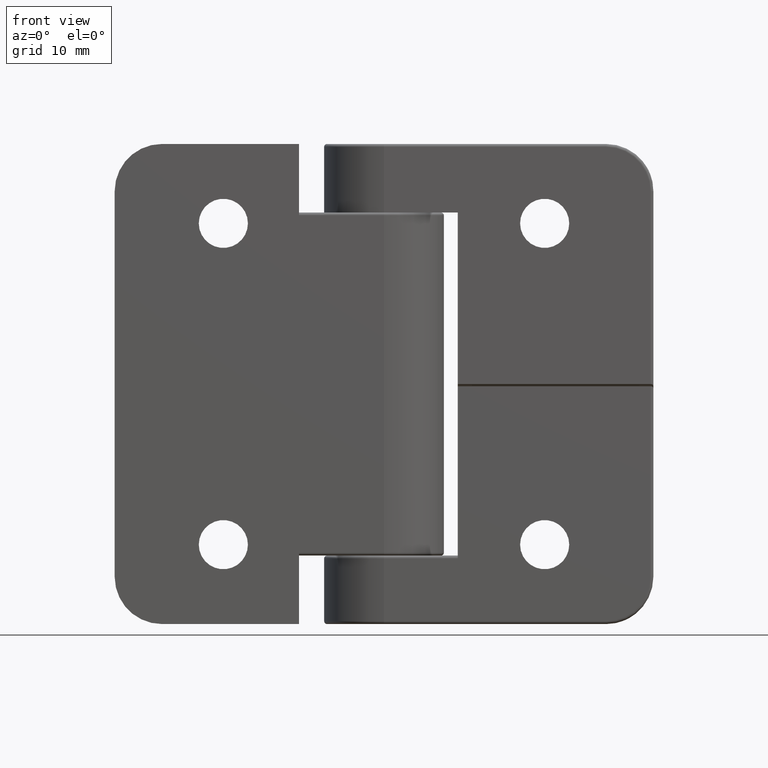
[diagram: clean part render]
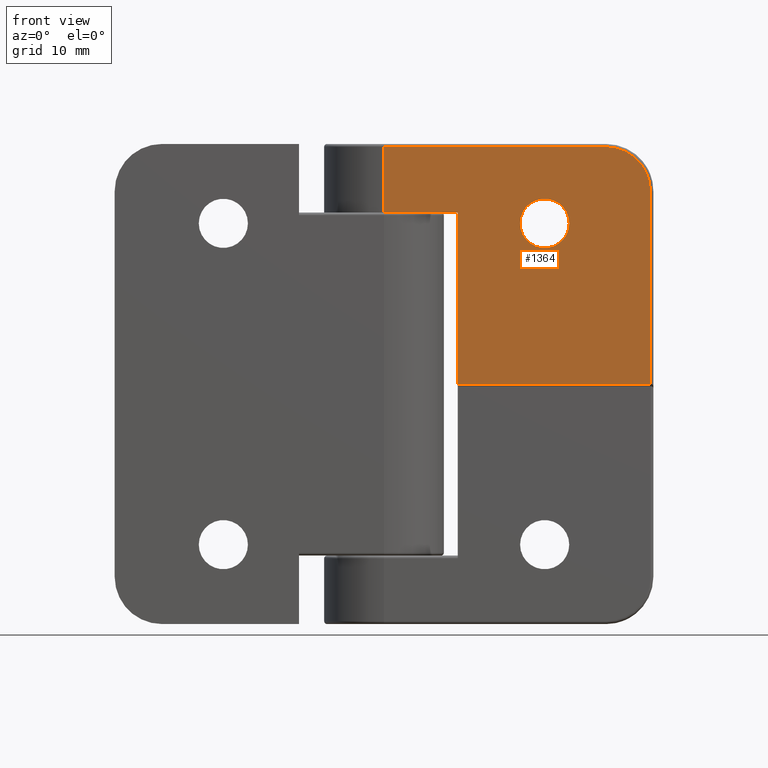
[diagram: same view with one face highlighted and labeled with its STEP entity id]
A machine part, front view. The second image highlights one B-rep face of the part: STEP entity #1364.
In plain terms, the highlighted planar face has unit normal (0, -1, -0).
Its self-contained STEP definition (entity closure, byte-faithful):
#44=FACE_BOUND('',#484,.T.);
#79=PLANE('',#1514);
#150=LINE('',#2334,#245);
#152=LINE('',#2346,#247);
#160=LINE('',#2363,#255);
#167=LINE('',#2400,#262);
#170=LINE('',#2414,#265);
#171=LINE('',#2415,#266);
#245=VECTOR('',#1809,23.5);
#247=VECTOR('',#1823,20.4);
#255=VECTOR('',#1841,20.4);
#262=VECTOR('',#1858,7.8);
#265=VECTOR('',#1877,6.95);
#266=VECTOR('',#1878,18.15);
#390=FACE_OUTER_BOUND('',#483,.T.);
#483=EDGE_LOOP('',(#1175,#1176,#1177,#1178,#1179,#1180,#1181));
#484=EDGE_LOOP('',(#1182));
#566=CIRCLE('',#1494,4.7);
#572=CIRCLE('',#1512,2.6);
#663=VERTEX_POINT('',#2324);
#665=VERTEX_POINT('',#2330);
#667=VERTEX_POINT('',#2336);
#669=VERTEX_POINT('',#2342);
#674=VERTEX_POINT('',#2362);
#680=VERTEX_POINT('',#2397);
#681=VERTEX_POINT('',#2399);
#684=VERTEX_POINT('',#2409);
#826=EDGE_CURVE('',#663,#665,#150,.T.);
#829=EDGE_CURVE('',#665,#667,#566,.T.);
#832=EDGE_CURVE('',#667,#669,#152,.T.);
#840=EDGE_CURVE('',#674,#669,#160,.T.);
#850=EDGE_CURVE('',#681,#680,#167,.T.);
#855=EDGE_CURVE('',#684,#684,#572,.T.);
#857=EDGE_CURVE('',#663,#681,#170,.T.);
#858=EDGE_CURVE('',#680,#674,#171,.T.);
#1175=ORIENTED_EDGE('',*,*,#826,.F.);
#1176=ORIENTED_EDGE('',*,*,#857,.T.);
#1177=ORIENTED_EDGE('',*,*,#850,.T.);
#1178=ORIENTED_EDGE('',*,*,#858,.T.);
#1179=ORIENTED_EDGE('',*,*,#840,.T.);
#1180=ORIENTED_EDGE('',*,*,#832,.F.);
#1181=ORIENTED_EDGE('',*,*,#829,.F.);
#1182=ORIENTED_EDGE('',*,*,#855,.T.);
#1364=ADVANCED_FACE('',(#390,#44),#79,.T.);
#1494=AXIS2_PLACEMENT_3D('',#2340,#1816,#1817);
#1512=AXIS2_PLACEMENT_3D('',#2410,#1870,#1871);
#1514=AXIS2_PLACEMENT_3D('',#2413,#1875,#1876);
#1809=DIRECTION('',(-1.,-4.67462326157961E-16,0.));
#1816=DIRECTION('center_axis',(-4.67462326157961E-16,1.,0.));
#1817=DIRECTION('ref_axis',(-0.707106781186548,-3.30545780775532E-16,-0.707106781186548));
#1823=DIRECTION('',(0.,0.,1.));
#1841=DIRECTION('',(-1.,-4.67462326157961E-16,-3.03850512002674E-16));
#1858=DIRECTION('',(-1.,-4.67462326157961E-16,0.));
#1870=DIRECTION('center_axis',(-4.67462326157961E-16,1.,0.));
#1871=DIRECTION('ref_axis',(1.,4.67462326157961E-16,0.));
#1875=DIRECTION('center_axis',(4.67462326157961E-16,-1.,0.));
#1876=DIRECTION('ref_axis',(1.,8.88178419700125E-16,0.));
#1877=DIRECTION('',(0.,0.,1.));
#1878=DIRECTION('',(0.,0.,1.));
#2324=CARTESIAN_POINT('',(3.11060286983428E-15,-6.35,-25.1));
#2330=CARTESIAN_POINT('',(-23.5,-6.35000000000001,-25.1));
#2334=CARTESIAN_POINT('',(-19.7778483025644,-6.35000000000001,-25.1));
#2336=CARTESIAN_POINT('',(-28.2,-6.35000000000001,-20.4));
#2340=CARTESIAN_POINT('Origin',(-23.5,-6.35000000000001,-20.4));
#2342=CARTESIAN_POINT('',(-28.2,-6.35000000000001,-1.45181865481311E-16));
#2346=CARTESIAN_POINT('',(-28.2,-6.35000000000001,0.));
#2362=CARTESIAN_POINT('',(-7.8,-6.35,6.66133814775094E-15));
#2363=CARTESIAN_POINT('',(-28.5,-6.35000000000001,-2.36337019082113E-16));
#2397=CARTESIAN_POINT('',(-7.8,-6.35,-18.15));
#2399=CARTESIAN_POINT('',(2.77555756156289E-15,-6.35,-18.15));
#2400=CARTESIAN_POINT('',(-5.14551493894654,-6.35,-18.15));
#2409=CARTESIAN_POINT('',(-19.6,-6.35000000000001,-17.));
#2410=CARTESIAN_POINT('Origin',(-17.,-6.35000000000001,-17.));
#2413=CARTESIAN_POINT('Origin',(-28.5,-6.35000000000001,0.));
#2414=CARTESIAN_POINT('',(3.11060286983428E-15,-6.35,0.));
#2415=CARTESIAN_POINT('',(-7.8,-6.35,-9.075));